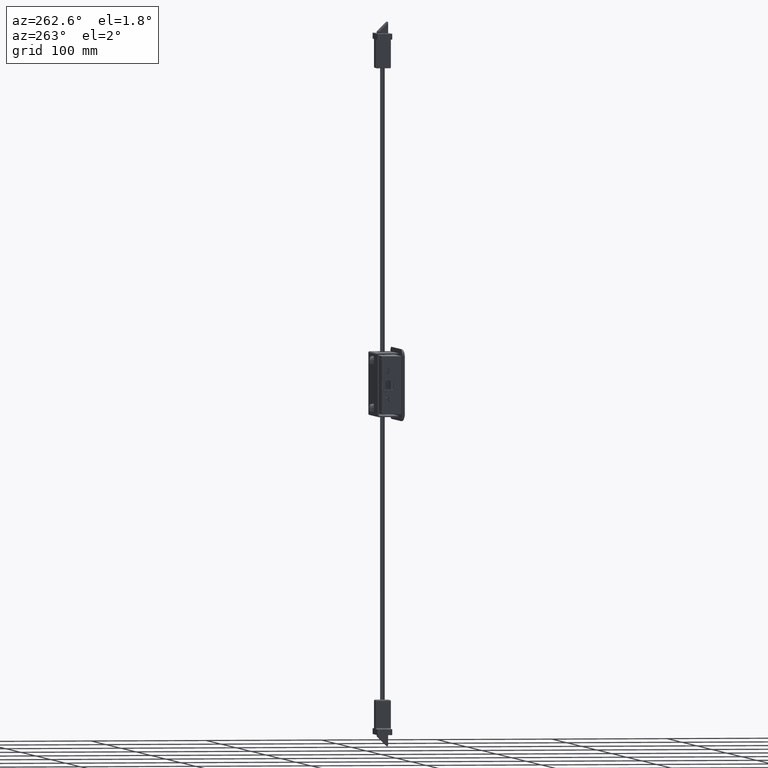
[diagram: clean part render]
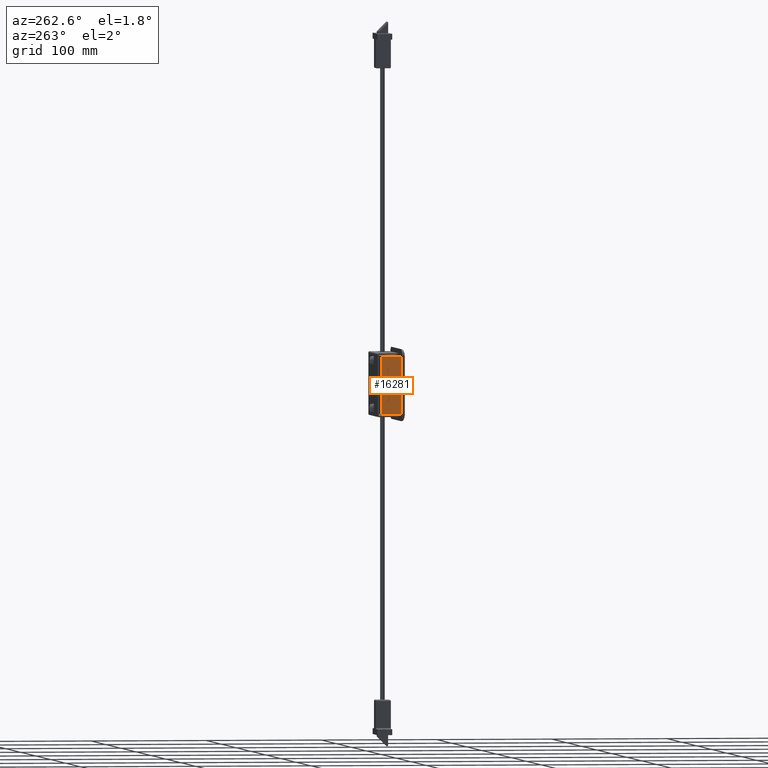
[diagram: same view with one face highlighted and labeled with its STEP entity id]
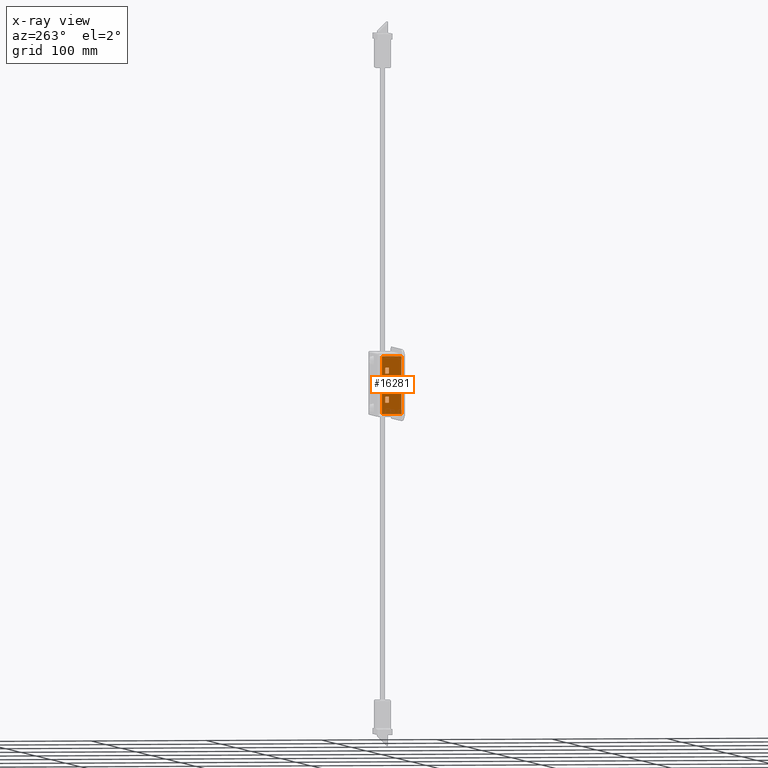
[diagram: x-ray of the same camera — body ghosted, the highlighted face saturated]
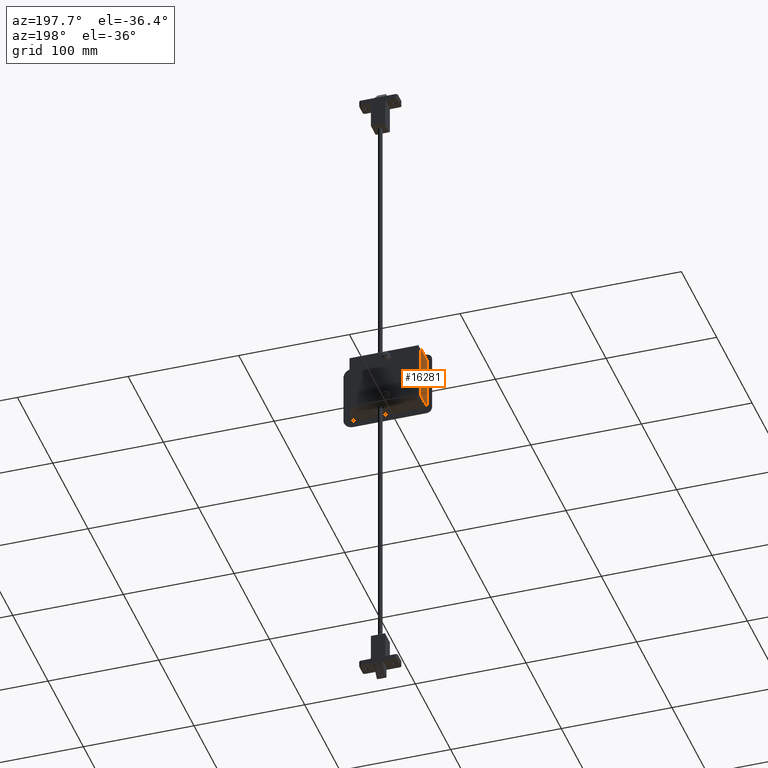
[diagram: same view with one face highlighted and labeled with its STEP entity id]
A machine part, auxiliary view. The second image highlights one B-rep face of the part: STEP entity #16281.
The next image is the same camera in x-ray: the body ghosted, the highlighted face saturated — about 0% of this face is hidden behind the body in this view.
A second angle (auxiliary view) of the same face is appended — the face is thin or edge-on in the first view.
In plain terms, the highlighted face is a freeform B-spline surface patch.
Its self-contained STEP definition (entity closure, byte-faithful):
#14521=CARTESIAN_POINT('',(-9.500000000000000,7.750000000000000,-15.0));
#14522=VERTEX_POINT('',#14521);
#14528=CARTESIAN_POINT('',(-9.500000000000000,7.750000000000000,-10.0));
#14529=VERTEX_POINT('',#14528);
#14530=CARTESIAN_POINT('',(-9.500000000000000,7.750000000000000,-10.0));
#14531=CARTESIAN_POINT('',(-9.500000000000000,7.750000000000000,-15.0));
#14532=QUASI_UNIFORM_CURVE('',1,(#14530,#14531),.UNSPECIFIED.,.F.,.U.);
#14533=EDGE_CURVE('',#14529,#14522,#14532,.T.);
#14556=CARTESIAN_POINT('',(-9.500000000000000,10.750000000000000,-10.0));
#14557=VERTEX_POINT('',#14556);
#14558=CARTESIAN_POINT('',(-9.500000000000000,10.750000000000000,-10.0));
#14559=CARTESIAN_POINT('',(-9.500000000000000,7.750000000000000,-10.0));
#14560=QUASI_UNIFORM_CURVE('',1,(#14558,#14559),.UNSPECIFIED.,.F.,.U.);
#14561=EDGE_CURVE('',#14557,#14529,#14560,.T.);
#14584=CARTESIAN_POINT('',(-9.500000000000000,10.750000000000000,-15.0));
#14585=VERTEX_POINT('',#14584);
#14586=CARTESIAN_POINT('',(-9.500000000000000,10.750000000000000,-15.0));
#14587=CARTESIAN_POINT('',(-9.500000000000000,10.750000000000000,-10.0));
#14588=QUASI_UNIFORM_CURVE('',1,(#14586,#14587),.UNSPECIFIED.,.F.,.U.);
#14589=EDGE_CURVE('',#14585,#14557,#14588,.T.);
#14610=CARTESIAN_POINT('',(-9.500000000000000,7.750000000000000,-15.0));
#14611=CARTESIAN_POINT('',(-9.500000000000000,10.750000000000000,-15.0));
#14612=QUASI_UNIFORM_CURVE('',1,(#14610,#14611),.UNSPECIFIED.,.F.,.U.);
#14613=EDGE_CURVE('',#14522,#14585,#14612,.T.);
#14633=CARTESIAN_POINT('',(-9.500000000000000,7.750000000000000,10.0));
#14634=VERTEX_POINT('',#14633);
#14640=CARTESIAN_POINT('',(-9.500000000000000,7.750000000000000,15.0));
#14641=VERTEX_POINT('',#14640);
#14642=CARTESIAN_POINT('',(-9.500000000000000,7.750000000000000,10.0));
#14643=CARTESIAN_POINT('',(-9.500000000000000,7.750000000000000,15.0));
#14644=QUASI_UNIFORM_CURVE('',1,(#14642,#14643),.UNSPECIFIED.,.F.,.U.);
#14645=EDGE_CURVE('',#14634,#14641,#14644,.T.);
#14667=CARTESIAN_POINT('',(-9.500000000000000,10.750000000000000,10.0));
#14668=VERTEX_POINT('',#14667);
#14674=CARTESIAN_POINT('',(-9.500000000000000,10.750000000000000,10.0));
#14675=CARTESIAN_POINT('',(-9.500000000000000,7.750000000000000,10.0));
#14676=QUASI_UNIFORM_CURVE('',1,(#14674,#14675),.UNSPECIFIED.,.F.,.U.);
#14677=EDGE_CURVE('',#14668,#14634,#14676,.T.);
#14695=CARTESIAN_POINT('',(-9.500000000000000,10.750000000000000,15.0));
#14696=VERTEX_POINT('',#14695);
#14702=CARTESIAN_POINT('',(-9.500000000000000,10.750000000000000,15.0));
#14703=CARTESIAN_POINT('',(-9.500000000000000,10.750000000000000,10.0));
#14704=QUASI_UNIFORM_CURVE('',1,(#14702,#14703),.UNSPECIFIED.,.F.,.U.);
#14705=EDGE_CURVE('',#14696,#14668,#14704,.T.);
#14722=CARTESIAN_POINT('',(-9.500000000000000,7.750000000000000,15.0));
#14723=CARTESIAN_POINT('',(-9.500000000000000,10.750000000000000,15.0));
#14724=QUASI_UNIFORM_CURVE('',1,(#14722,#14723),.UNSPECIFIED.,.F.,.U.);
#14725=EDGE_CURVE('',#14641,#14696,#14724,.T.);
#15824=CARTESIAN_POINT('',(-9.500000000000000,3.500000000000000,3.750000000000000));
#15825=VERTEX_POINT('',#15824);
#15826=CARTESIAN_POINT('',(-9.500000000000000,13.750000000000000,3.750000000000000));
#15827=VERTEX_POINT('',#15826);
#15828=CARTESIAN_POINT('',(-9.500000000000000,3.500000000000000,3.750000000000000));
#15829=CARTESIAN_POINT('',(-9.500000000000000,13.750000000000000,3.750000000000000));
#15830=QUASI_UNIFORM_CURVE('',1,(#15828,#15829),.UNSPECIFIED.,.F.,.U.);
#15831=EDGE_CURVE('',#15825,#15827,#15830,.T.);
#15860=CARTESIAN_POINT('',(-9.500000000000000,3.500000000000000,-3.750000000000000));
#15861=VERTEX_POINT('',#15860);
#15862=CARTESIAN_POINT('',(-9.500000000000000,3.500000000000000,-3.750000000000000));
#15863=CARTESIAN_POINT('',(-9.500000000000000,3.500000000000000,3.750000000000000));
#15864=QUASI_UNIFORM_CURVE('',1,(#15862,#15863),.UNSPECIFIED.,.F.,.U.);
#15865=EDGE_CURVE('',#15861,#15825,#15864,.T.);
#15888=CARTESIAN_POINT('',(-9.500000000000000,13.750000000000000,-3.750000000000000));
#15889=VERTEX_POINT('',#15888);
#15890=CARTESIAN_POINT('',(-9.500000000000000,13.750000000000000,-3.750000000000000));
#15891=CARTESIAN_POINT('',(-9.500000000000000,3.500000000000000,-3.750000000000000));
#15892=QUASI_UNIFORM_CURVE('',1,(#15890,#15891),.UNSPECIFIED.,.F.,.U.);
#15893=EDGE_CURVE('',#15889,#15861,#15892,.T.);
#16119=CARTESIAN_POINT('',(-9.500000000000000,13.750000000000000,25.0));
#16120=VERTEX_POINT('',#16119);
#16128=CARTESIAN_POINT('',(-9.500000000000000,-3.250000000000000,25.0));
#16129=VERTEX_POINT('',#16128);
#16130=CARTESIAN_POINT('',(-9.500000000000000,-3.250000000000000,25.0));
#16131=CARTESIAN_POINT('',(-9.500000000000000,13.750000000000000,25.0));
#16132=QUASI_UNIFORM_CURVE('',1,(#16130,#16131),.UNSPECIFIED.,.F.,.U.);
#16133=EDGE_CURVE('',#16129,#16120,#16132,.T.);
#16183=CARTESIAN_POINT('',(-9.500000000000000,13.750000000000000,-25.0));
#16184=VERTEX_POINT('',#16183);
#16211=CARTESIAN_POINT('',(-9.500000000000000,-3.250000000000000,-25.0));
#16212=VERTEX_POINT('',#16211);
#16218=CARTESIAN_POINT('',(-9.500000000000000,-3.250000000000000,-25.0));
#16219=CARTESIAN_POINT('',(-9.500000000000000,13.750000000000000,-25.0));
#16220=QUASI_UNIFORM_CURVE('',1,(#16218,#16219),.UNSPECIFIED.,.F.,.U.);
#16221=EDGE_CURVE('',#16212,#16184,#16220,.T.);
#16242=CARTESIAN_POINT('',(-9.500000000000000,-4.099149967050700,-27.497499903090290));
#16243=CARTESIAN_POINT('',(-9.500000000000000,14.599150423026231,-27.497499903090290));
#16244=CARTESIAN_POINT('',(-9.500000000000000,-4.099149967050700,27.497501244194801));
#16245=CARTESIAN_POINT('',(-9.500000000000000,14.599150423026231,27.497501244194801));
#16246=B_SPLINE_SURFACE_WITH_KNOTS('',1,1,((#16242,#16244),(#16243,#16245)),.UNSPECIFIED.,.F.,.F.,.U.,(2,2),(2,2),(0.0,18.698300390076930),(0.0,54.995001147285102),.UNSPECIFIED.);
#16247=ORIENTED_EDGE('',*,*,#15865,.F.);
#16248=ORIENTED_EDGE('',*,*,#15893,.F.);
#16249=CARTESIAN_POINT('',(-9.500000000000000,13.750000000000000,-25.0));
#16250=CARTESIAN_POINT('',(-9.500000000000000,13.750000000000000,-3.750000000000000));
#16251=QUASI_UNIFORM_CURVE('',1,(#16249,#16250),.UNSPECIFIED.,.F.,.U.);
#16252=EDGE_CURVE('',#16184,#15889,#16251,.T.);
#16253=ORIENTED_EDGE('',*,*,#16252,.F.);
#16254=ORIENTED_EDGE('',*,*,#16221,.F.);
#16255=CARTESIAN_POINT('',(-9.500000000000000,-3.250000000000000,-25.0));
#16256=CARTESIAN_POINT('',(-9.500000000000000,-3.250000000000000,25.0));
#16257=QUASI_UNIFORM_CURVE('',1,(#16255,#16256),.UNSPECIFIED.,.F.,.U.);
#16258=EDGE_CURVE('',#16212,#16129,#16257,.T.);
#16259=ORIENTED_EDGE('',*,*,#16258,.T.);
#16260=ORIENTED_EDGE('',*,*,#16133,.T.);
#16261=CARTESIAN_POINT('',(-9.500000000000000,13.750000000000000,3.750000000000000));
#16262=CARTESIAN_POINT('',(-9.500000000000000,13.750000000000000,25.0));
#16263=QUASI_UNIFORM_CURVE('',1,(#16261,#16262),.UNSPECIFIED.,.F.,.U.);
#16264=EDGE_CURVE('',#15827,#16120,#16263,.T.);
#16265=ORIENTED_EDGE('',*,*,#16264,.F.);
#16266=ORIENTED_EDGE('',*,*,#15831,.F.);
#16267=EDGE_LOOP('',(#16247,#16248,#16253,#16254,#16259,#16260,#16265,#16266));
#16268=FACE_OUTER_BOUND('',#16267,.T.);
#16269=ORIENTED_EDGE('',*,*,#14705,.F.);
#16270=ORIENTED_EDGE('',*,*,#14725,.F.);
#16271=ORIENTED_EDGE('',*,*,#14645,.F.);
#16272=ORIENTED_EDGE('',*,*,#14677,.F.);
#16273=EDGE_LOOP('',(#16269,#16270,#16271,#16272));
#16274=FACE_BOUND('',#16273,.T.);
#16275=ORIENTED_EDGE('',*,*,#14533,.T.);
#16276=ORIENTED_EDGE('',*,*,#14613,.T.);
#16277=ORIENTED_EDGE('',*,*,#14589,.T.);
#16278=ORIENTED_EDGE('',*,*,#14561,.T.);
#16279=EDGE_LOOP('',(#16275,#16276,#16277,#16278));
#16280=FACE_BOUND('',#16279,.T.);
#16281=ADVANCED_FACE('',(#16268,#16274,#16280),#16246,.F.);